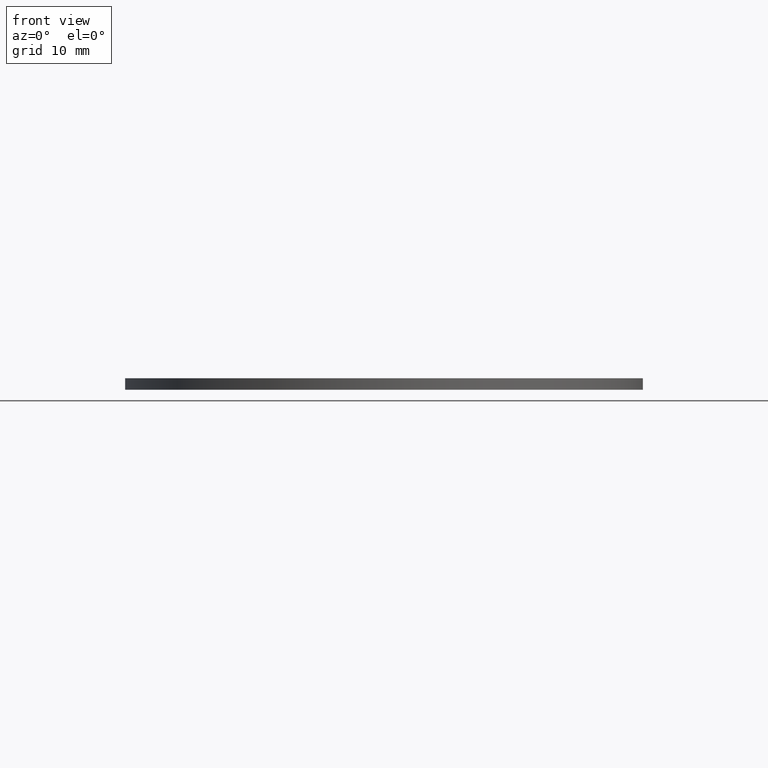
[diagram: clean part render]
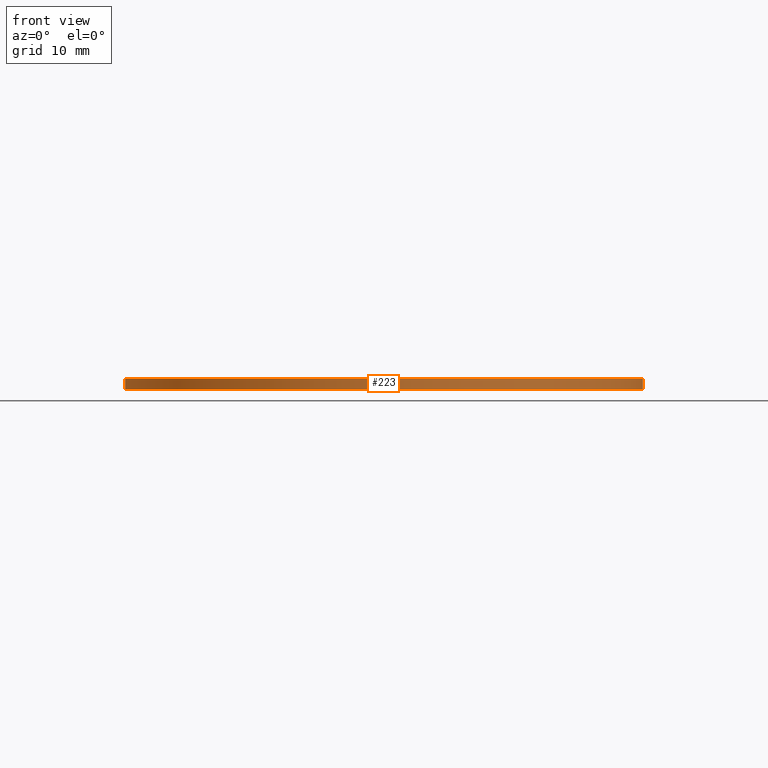
[diagram: same view with one face highlighted and labeled with its STEP entity id]
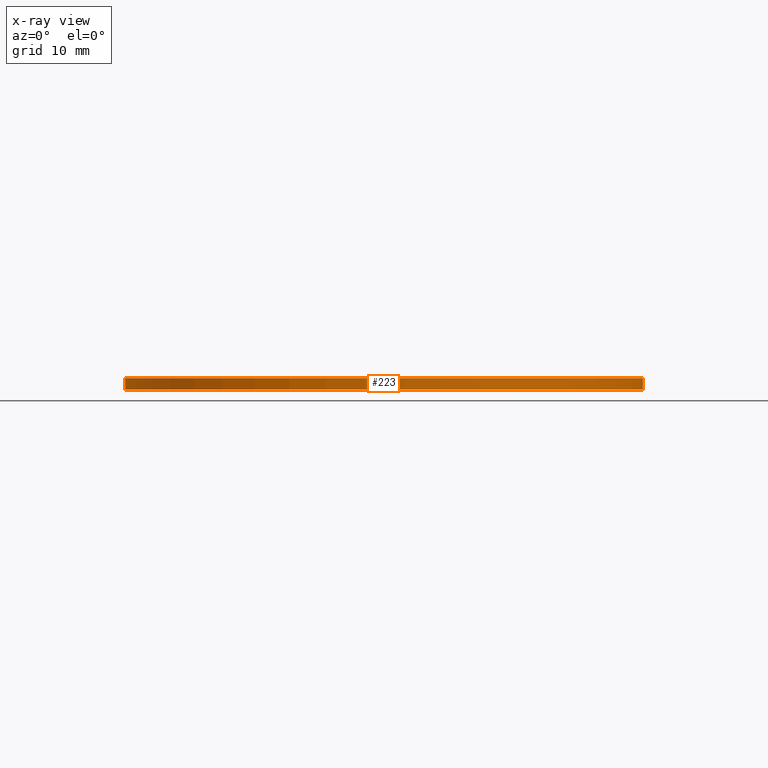
[diagram: x-ray of the same camera — body ghosted, the highlighted face saturated]
A machine part, front view. The second image highlights one B-rep face of the part: STEP entity #223.
The next image is the same camera in x-ray: the body ghosted, the highlighted face saturated — about 0% of this face is hidden behind the body in this view.
In plain terms, the highlighted cylindrical surface (partial cylindrical patch) has radius 25 mm, axis along (-0, -0, -1).
Its self-contained STEP definition (entity closure, byte-faithful):
#11 = VERTEX_POINT ( 'NONE', #240 ) ;
#14 = LINE ( 'NONE', #158, #18 ) ;
#18 = VECTOR ( 'NONE', #138, 1000.000000000000000 ) ;
#19 = EDGE_CURVE ( 'NONE', #111, #214, #25, .T. ) ;
#23 = CARTESIAN_POINT ( 'NONE',  ( -25.00000000000000000, 0.0000000000000000000, 1.100000000000000100 ) ) ;
#25 = LINE ( 'NONE', #23, #58 ) ;
#41 = CARTESIAN_POINT ( 'NONE',  ( -25.00000000000000000, 0.0000000000000000000, 0.0000000000000000000 ) ) ;
#52 = DIRECTION ( 'NONE',  ( -0.0000000000000000000, -0.0000000000000000000, -1.000000000000000000 ) ) ;
#55 = CIRCLE ( 'NONE', #171, 25.00000000000000000 ) ;
#58 = VECTOR ( 'NONE', #79, 1000.000000000000000 ) ;
#79 = DIRECTION ( 'NONE',  ( -0.0000000000000000000, -0.0000000000000000000, -1.000000000000000000 ) ) ;
#88 = DIRECTION ( 'NONE',  ( 1.000000000000000000, 0.0000000000000000000, 0.0000000000000000000 ) ) ;
#89 = AXIS2_PLACEMENT_3D ( 'NONE', #145, #222, #88 ) ;
#96 = CIRCLE ( 'NONE', #89, 25.00000000000000000 ) ;
#105 = DIRECTION ( 'NONE',  ( 1.000000000000000000, 0.0000000000000000000, 0.0000000000000000000 ) ) ;
#107 = ORIENTED_EDGE ( 'NONE', *, *, #128, .F. ) ;
#111 = VERTEX_POINT ( 'NONE', #162 ) ;
#124 = VERTEX_POINT ( 'NONE', #243 ) ;
#128 = EDGE_CURVE ( 'NONE', #11, #124, #14, .T. ) ;
#130 = EDGE_LOOP ( 'NONE', ( #107, #160, #170, #152 ) ) ;
#138 = DIRECTION ( 'NONE',  ( -0.0000000000000000000, -0.0000000000000000000, -1.000000000000000000 ) ) ;
#141 = CARTESIAN_POINT ( 'NONE',  ( 0.0000000000000000000, 0.0000000000000000000, 1.100000000000000100 ) ) ;
#145 = CARTESIAN_POINT ( 'NONE',  ( 0.0000000000000000000, 0.0000000000000000000, 0.0000000000000000000 ) ) ;
#146 = CYLINDRICAL_SURFACE ( 'NONE', #193, 25.00000000000000000 ) ;
#152 = ORIENTED_EDGE ( 'NONE', *, *, #221, .T. ) ;
#158 = CARTESIAN_POINT ( 'NONE',  ( 25.00000000000000000, 3.061616997868383000E-015, 1.100000000000000100 ) ) ;
#160 = ORIENTED_EDGE ( 'NONE', *, *, #250, .F. ) ;
#162 = CARTESIAN_POINT ( 'NONE',  ( -25.00000000000000000, 0.0000000000000000000, 1.100000000000000100 ) ) ;
#163 = CARTESIAN_POINT ( 'NONE',  ( 0.0000000000000000000, 0.0000000000000000000, 1.100000000000000100 ) ) ;
#170 = ORIENTED_EDGE ( 'NONE', *, *, #19, .T. ) ;
#171 = AXIS2_PLACEMENT_3D ( 'NONE', #141, #241, #105 ) ;
#192 = FACE_OUTER_BOUND ( 'NONE', #130, .T. ) ;
#193 = AXIS2_PLACEMENT_3D ( 'NONE', #163, #52, #245 ) ;
#214 = VERTEX_POINT ( 'NONE', #41 ) ;
#221 = EDGE_CURVE ( 'NONE', #214, #124, #96, .T. ) ;
#222 = DIRECTION ( 'NONE',  ( 0.0000000000000000000, 0.0000000000000000000, 1.000000000000000000 ) ) ;
#223 = ADVANCED_FACE ( 'NONE', ( #192 ), #146, .T. ) ;
#240 = CARTESIAN_POINT ( 'NONE',  ( 25.00000000000000000, 3.061616997868383000E-015, 1.100000000000000100 ) ) ;
#241 = DIRECTION ( 'NONE',  ( 0.0000000000000000000, 0.0000000000000000000, 1.000000000000000000 ) ) ;
#243 = CARTESIAN_POINT ( 'NONE',  ( 25.00000000000000000, 3.061616997868383000E-015, 0.0000000000000000000 ) ) ;
#245 = DIRECTION ( 'NONE',  ( -1.000000000000000000, 0.0000000000000000000, 0.0000000000000000000 ) ) ;
#250 = EDGE_CURVE ( 'NONE', #111, #11, #55, .T. ) ;